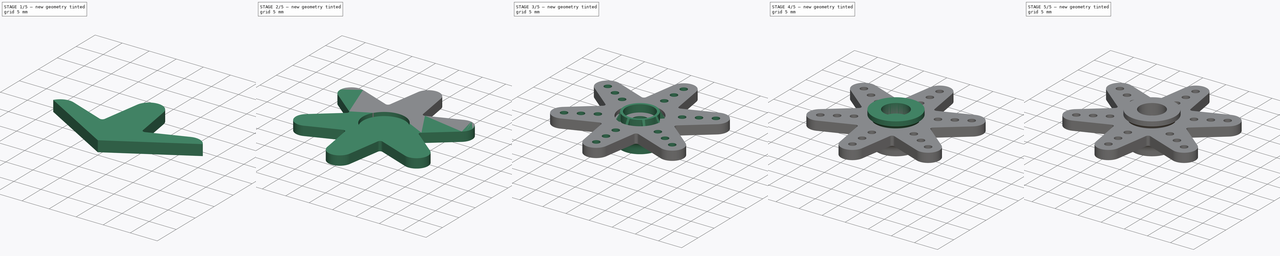
[diagram: build sequence overview — one tinted view per stage of 5, left to right]
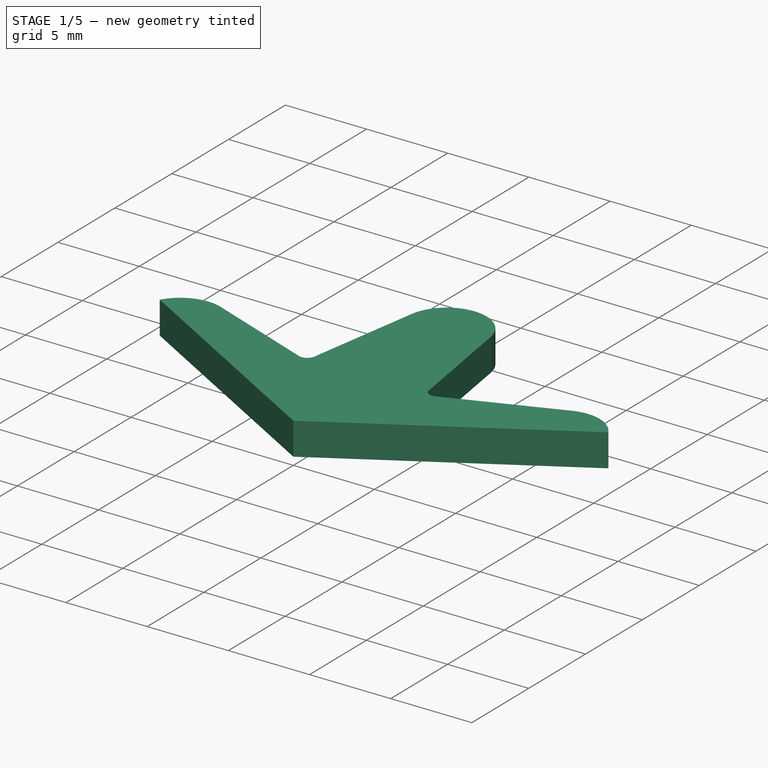
[diagram: stage 1 of 5 — iso view after this stage's code; geometry added in this stage tinted green]
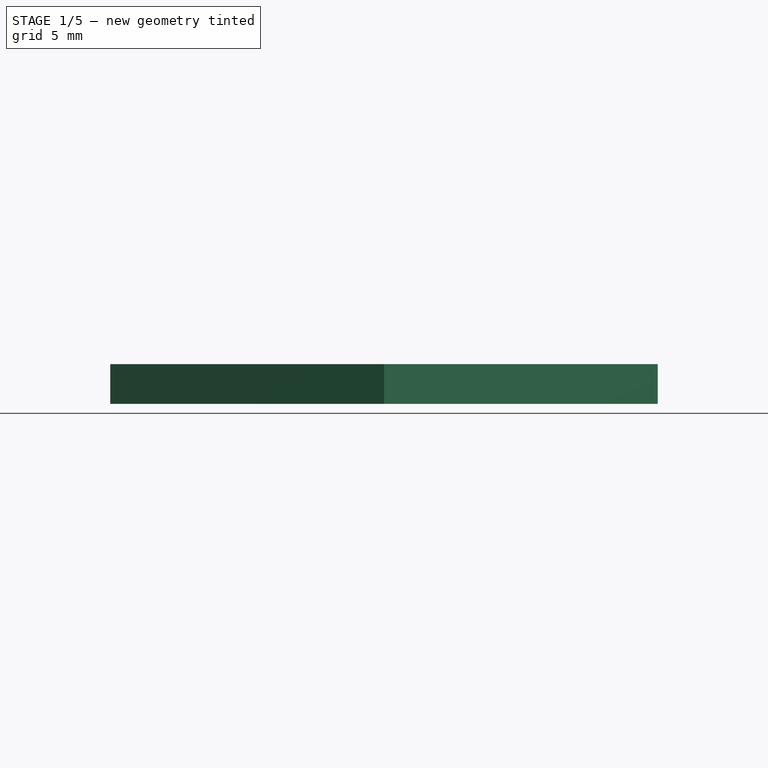
[diagram: stage 1 of 5 — front view after this stage's code; geometry added in this stage tinted green]
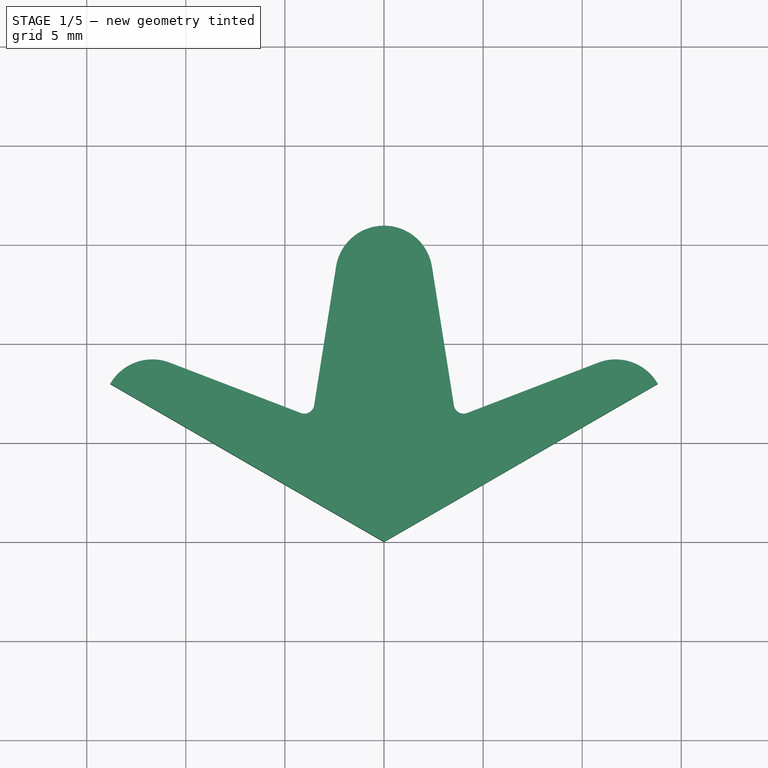
[diagram: stage 1 of 5 — top view after this stage's code; geometry added in this stage tinted green]
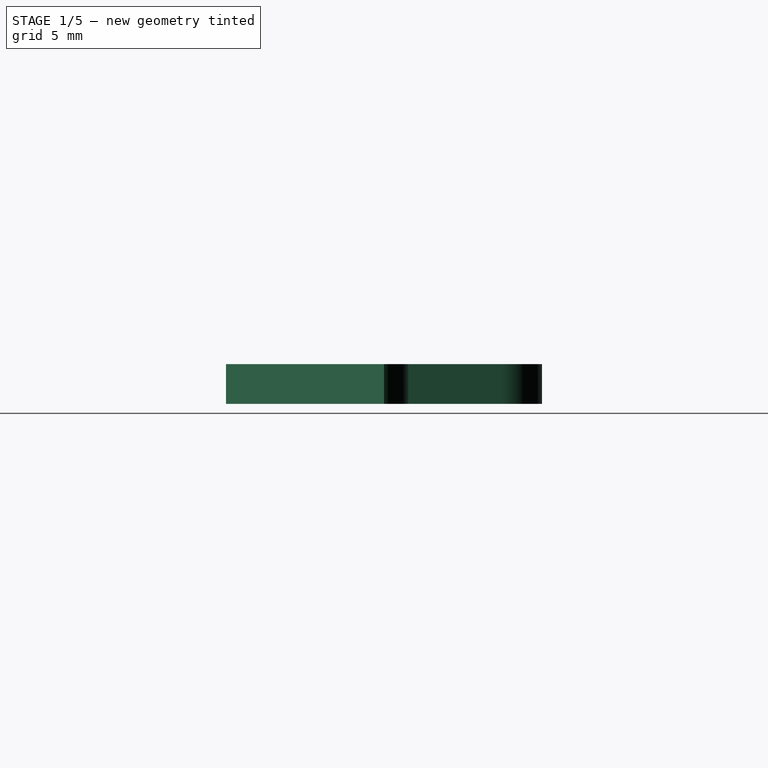
[diagram: stage 1 of 5 — right view after this stage's code; geometry added in this stage tinted green]
FCSTD DOCUMENT  (FreeCAD 0.14R3702 (Git))
Label: Futaba3003-6-arms-horn
License: CC-BY 3.0
LicenseURL: http://creativecommons.org/licenses/by/3.0/
objects: Sketcher::SketchObject×10, PartDesign::Pocket×6, Part::Feature×4, Part::MultiFuse×3, PartDesign::Pad×2, PartDesign::Revolution×2, PartDesign::PolarPattern×2, App::DocumentObjectGroup×2, Part::Mirroring×1
note: 40 computed .brp shape members not serialized (recipe doc carries the construction recipe); baked Part::Feature solids carry a one-line shape summary decoded from their .brp

FEATURE [Sketcher::SketchObject] Sketch  label="6-arms-master-sketch"
  sketch-geometry (8):
    g0: LineSegment StartX=0 StartY=0 StartZ=0 EndX=-13.8131 EndY=7.975 EndZ=0
    g1: LineSegment StartX=0 StartY=0 StartZ=0 EndX=0 EndY=15.95 EndZ=0
    g2: ArcOfCircle CenterX=0 CenterY=13.5 CenterZ=0 NormalX=0 NormalY=0 NormalZ=1 Radius=2.45 StartAngle=1.5708 EndAngle=2.98482
    g3: ArcOfCircle CenterX=-11.6913 CenterY=6.75 CenterZ=0 NormalX=0 NormalY=0 NormalZ=1 Radius=2.45 StartAngle=1.20397 EndAngle=2.61799
    g4: LineSegment [constr] StartX=-3.77 StartY=6.52983 StartZ=0 EndX=0 EndY=0 EndZ=0
    g5: LineSegment StartX=-2.41995 StartY=13.8825 StartZ=0 EndX=-3.52613 EndY=6.88478 EndZ=0
    g6: LineSegment StartX=-10.8126 StartY=9.037 StartZ=0 EndX=-4.19932 EndY=6.49611 EndZ=0
    g7: ArcOfCircle CenterX=-4.02 CenterY=6.96284 CenterZ=0 NormalX=0 NormalY=0 NormalZ=1 Radius=0.5 StartAngle=4.34557 EndAngle=6.12641
  constraints (24):
    c: Vertical(g1)
    c: Coincident(g1,g0)
    c: Coincident(g0,g-1)
    c: Angle(g1,g0) = 1.0472
    c: Equal(g0,g1)
    c: DistanceY(g1) = 15.95
    c: PointOnObject(g2,g1)
    c: Coincident(g2,g1)
    c: PointOnObject(g3,g0)
    c: Coincident(g3,g0)
    c: Coincident(g4,g-1)
    c: Angle(g1,g4) = 0.523599
    c: Distance(g4) = 7.54
    c: Equal(g3,g2)
    c: Coincident(g5,g2)
    c: Coincident(g6,g3)
    c: Tangent(g5,g7)
    c: Tangent(g6,g7)
    c: PointOnObject(g7,g4)
    c: PointOnObject(g4,g7)
    c: Radius(g7) = 0.5
    c: Tangent(g3,g6)
    c: Tangent(g2,g5)
    c: Radius(g2) = 2.45
FEATURE [PartDesign::Pad] Pad  label="6-arms-master"
  Length = 2
  Length2 = 100
  Sketch = -> Sketch
  Type = 0
FEATURE [Part::Mirroring] Part__Mirroring  label="6-arms-master (Mirror #1)"
  Base = (0,0,0)
  Normal = (1,0,0)
  Source = -> Pad
FEATURE [Part::MultiFuse] Fusion  label="6-arm-one-third"
  Shapes = -> [Part__Mirroring,Pad]
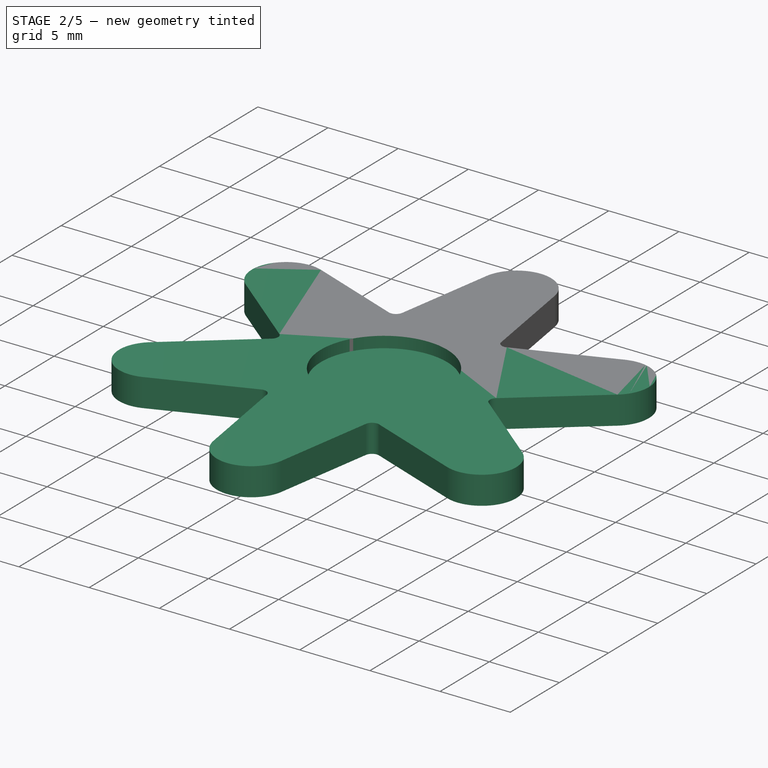
[diagram: stage 2 of 5 — iso view after this stage's code; geometry added in this stage tinted green]
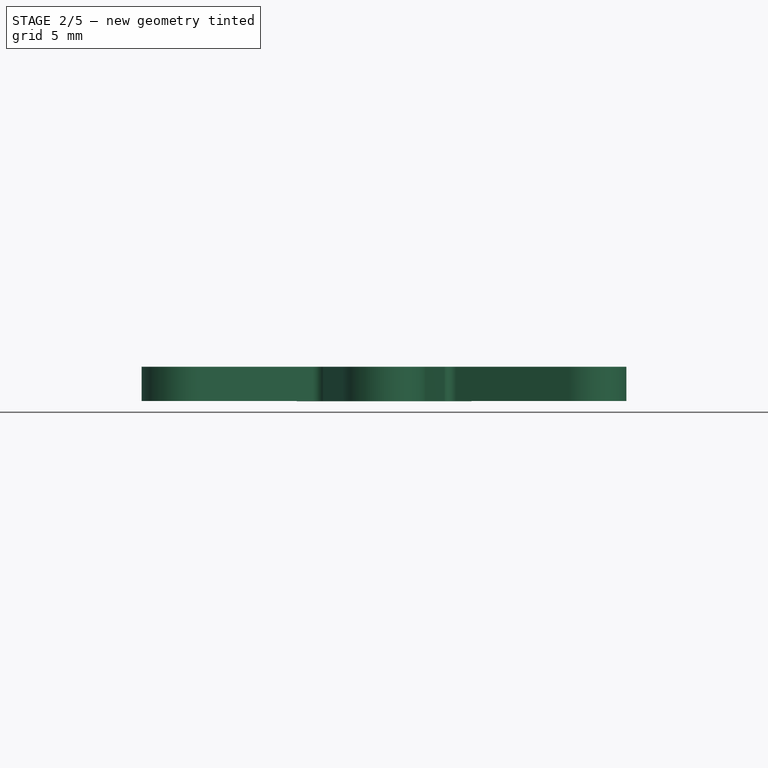
[diagram: stage 2 of 5 — front view after this stage's code; geometry added in this stage tinted green]
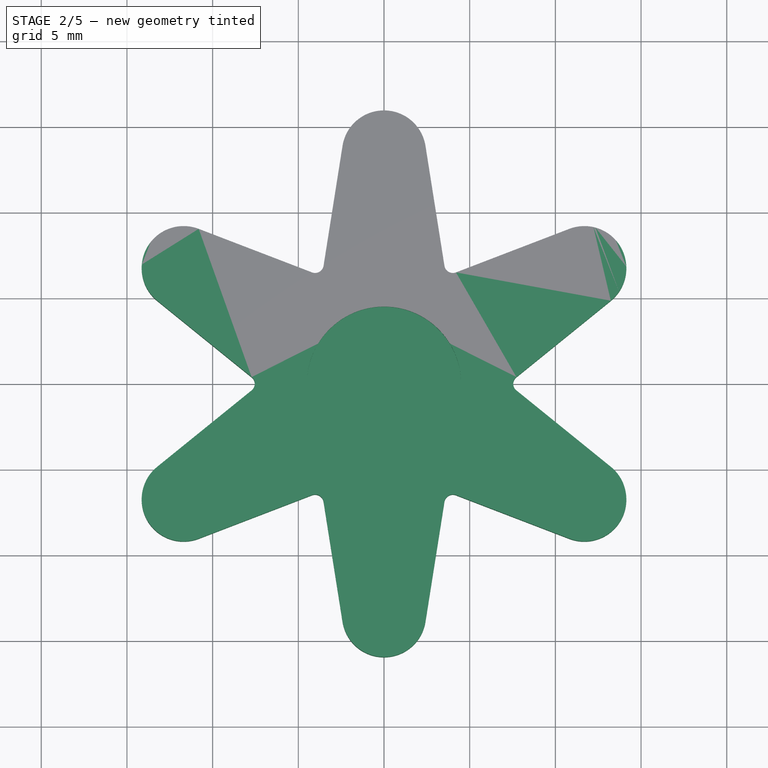
[diagram: stage 2 of 5 — top view after this stage's code; geometry added in this stage tinted green]
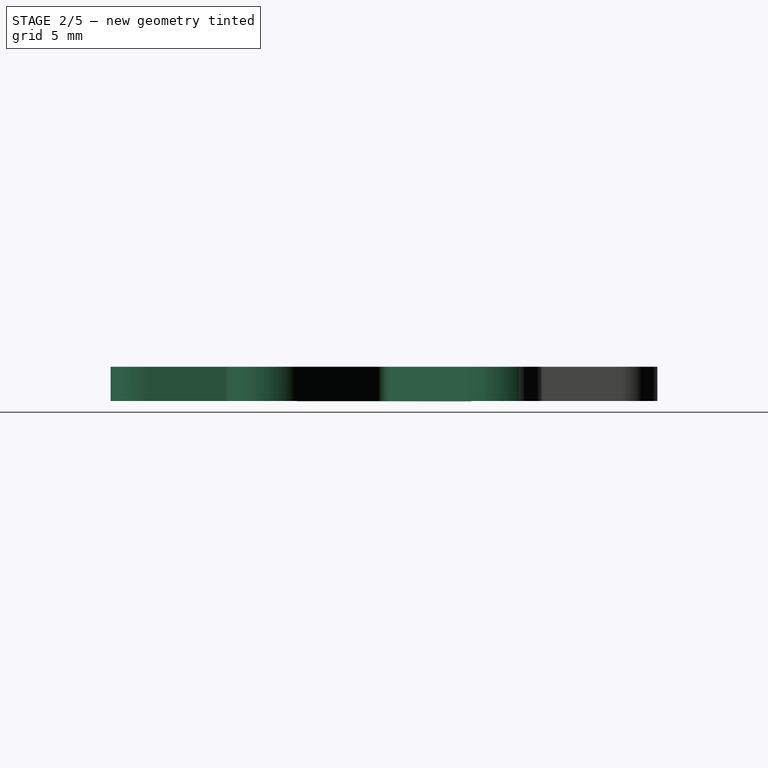
[diagram: stage 2 of 5 — right view after this stage's code; geometry added in this stage tinted green]
FEATURE [Part::Feature] Fusion001  label="6-arm-two-third"
  Placement = pos=(0,0,0) rot=(0,0,1;2.0944rad)
  shape: bbox 14.14 x 23.93 x 2 mm, 13 faces (baked)
FEATURE [Part::Feature] Fusion001001  label="6-arm-three-third"
  Placement = pos=(0,0,0) rot=(0,0,1;4.18879rad)
  shape: bbox 14.14 x 23.93 x 2 mm, 13 faces (baked)
FEATURE [Part::MultiFuse] Fusion001002  label="6-arm-horn-raw-body"
  Shapes = -> [Fusion,Fusion001,Fusion001001]
FEATURE [Sketcher::SketchObject] Sketch001  label="top-circle-1-sketch"
  Placement = pos=(0,0,2) rot=(0,0,1;0rad)
  Support = -> Fusion001002 [Face27]
  sketch-geometry (1):
    g0: Circle CenterX=0 CenterY=0 CenterZ=0 NormalX=0 NormalY=0 NormalZ=1 Radius=4.5
  constraints (2):
    c: Coincident(g0,g-1)
    c: Radius(g0) = 4.5
FEATURE [PartDesign::Pocket] Pocket  label="top-circle-1"
  Length = 0.8
  Sketch = -> Sketch001
  Type = 0
FEATURE [Sketcher::SketchObject] Sketch002  label="bottom-circle-sketch"
  Placement = pos=(0,0,0) rot=(1,0,0;3.14159rad)
  Support = -> Pocket [Face4]
  sketch-geometry (1):
    g0: Circle CenterX=0 CenterY=0 CenterZ=0 NormalX=0 NormalY=0 NormalZ=1 Radius=5.1
  constraints (2):
    c: Coincident(g0,g-1)
    c: Radius(g0) = 5.1
FEATURE [PartDesign::Pad] Pad001  label="bottom-circle-1"
  Length = 0.01
  Length2 = 100
  Sketch = -> Sketch002
  Type = 0
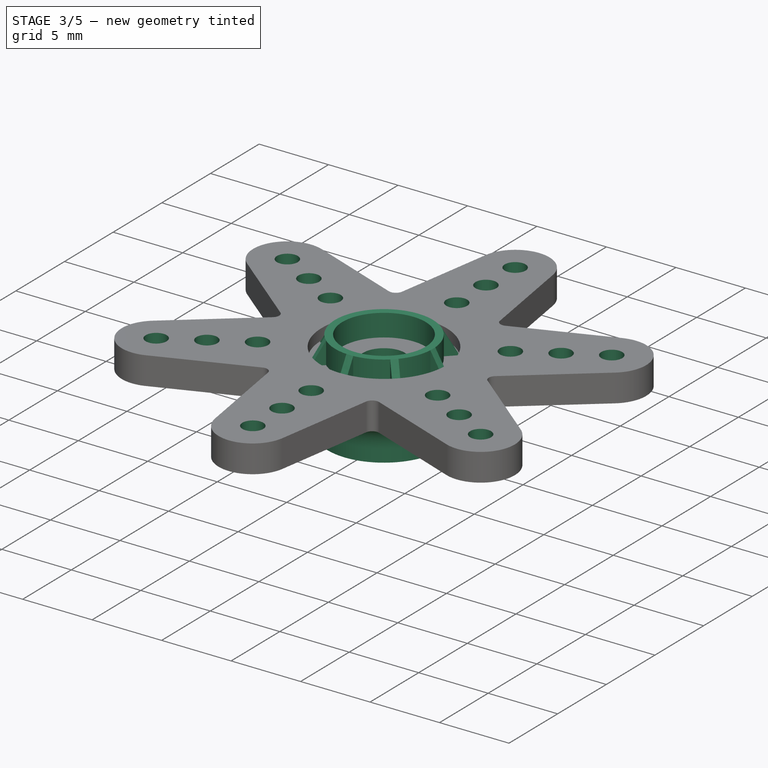
[diagram: stage 3 of 5 — iso view after this stage's code; geometry added in this stage tinted green]
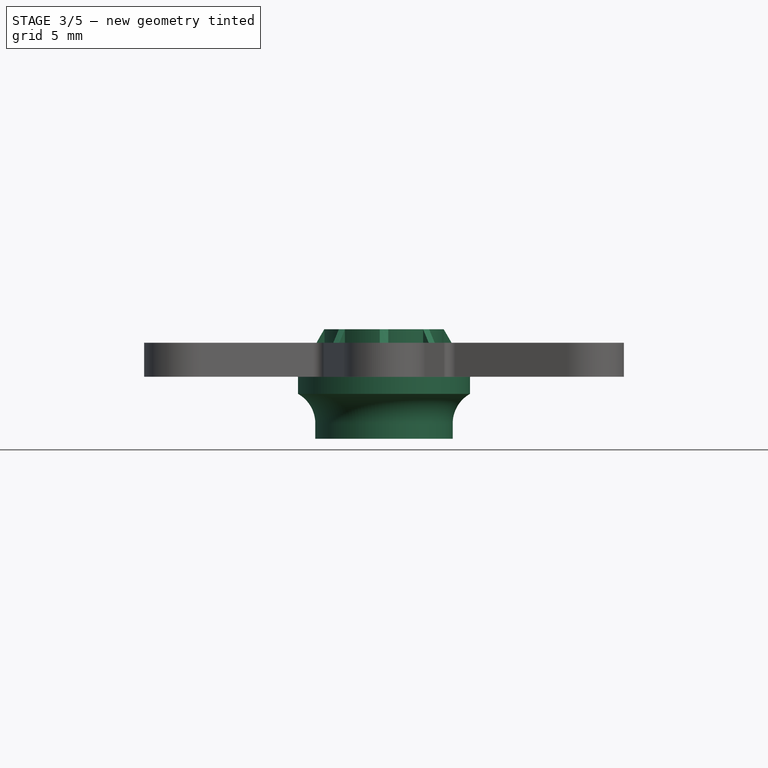
[diagram: stage 3 of 5 — front view after this stage's code; geometry added in this stage tinted green]
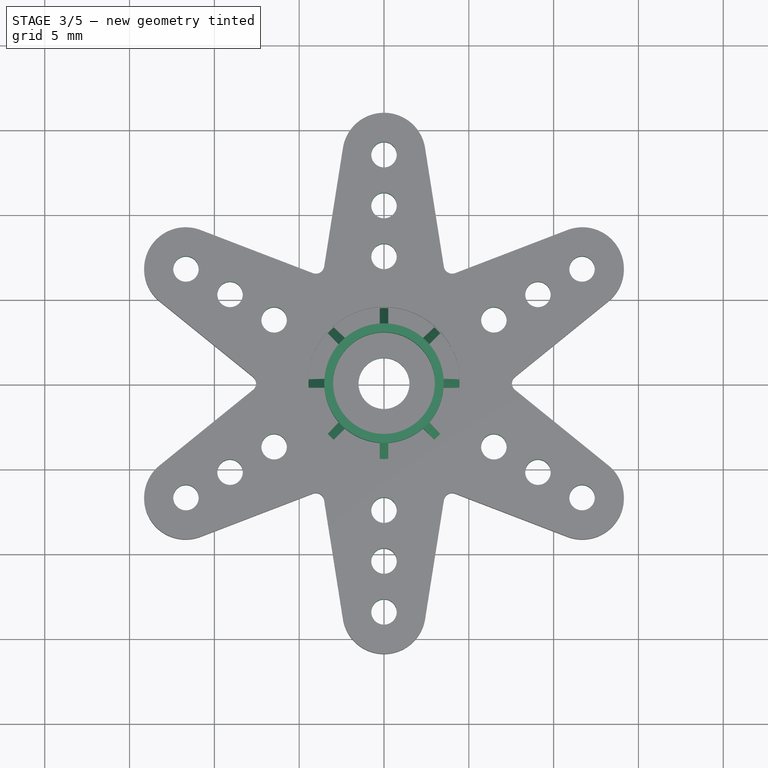
[diagram: stage 3 of 5 — top view after this stage's code; geometry added in this stage tinted green]
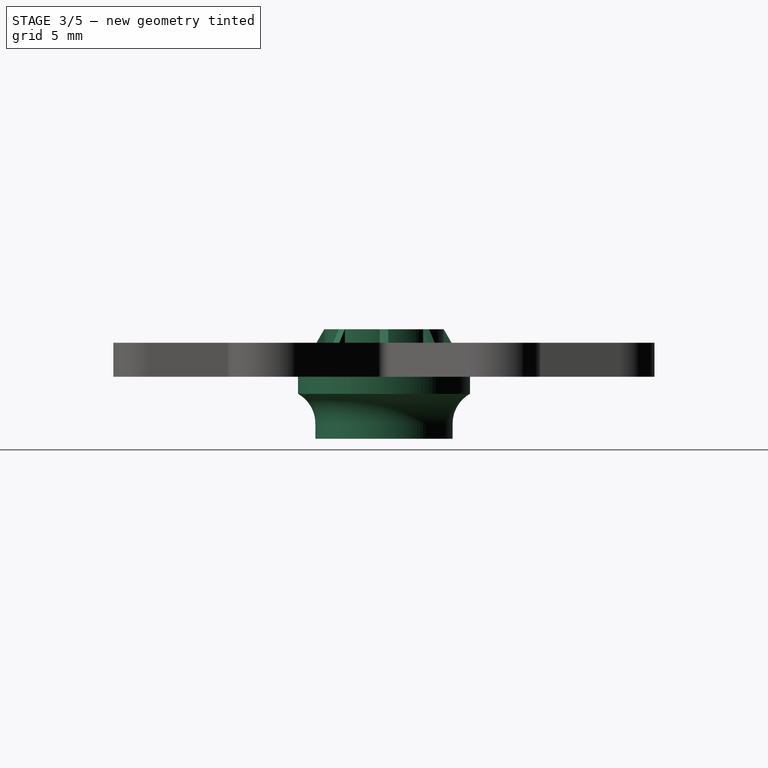
[diagram: stage 3 of 5 — right view after this stage's code; geometry added in this stage tinted green]
FEATURE [App::DocumentObjectGroup] Group001  label="bottom-part-group"
  Group = -> [Revolution001,Pocket002002]
FEATURE [Part::Feature] Pocket002002001  label="bottom-part"
  Placement = pos=(0,0,-3.66) rot=(1,0,0;1.5708rad)
  shape: bbox 13.1 x 13.1 x 4.163 mm, 6 faces (baked)
FEATURE [Part::MultiFuse] Fusion001003  label="6-arms-horn-2"
  Shapes = -> [Pad001,Pocket002001,Pocket002002001]
FEATURE [Sketcher::SketchObject] Sketch008  label="bolt-drill-sketch"
  Placement = pos=(0,0,1.2) rot=(0,0,1;0rad)
  Support = -> Fusion001003 [Face74]
  sketch-geometry (1):
    g0: Circle CenterX=0 CenterY=0 CenterZ=0 NormalX=0 NormalY=0 NormalZ=1 Radius=1.5
  constraints (2):
    c: Coincident(g0,g-1)
    c: Radius(g0) = 1.5
FEATURE [PartDesign::Pocket] Pocket002002002  label="bolt-drill"
  Length = 5
  Sketch = -> Sketch008
  Type = 1
FEATURE [Sketcher::SketchObject] Sketch009  label="arm-drills-master-sketch"
  ExternalGeometry = -> [Pocket002002002]
  Placement = pos=(0,0,2) rot=(0,0,1;0rad)
  Support = -> Pocket002002002 [Face57]
  sketch-geometry (7):
    g0: Circle CenterX=0 CenterY=13.48 CenterZ=0 NormalX=0 NormalY=0 NormalZ=1 Radius=0.75
    g1: Circle CenterX=0 CenterY=10.48 CenterZ=0 NormalX=0 NormalY=0 NormalZ=1 Radius=0.75
    g2: Circle CenterX=0 CenterY=7.48 CenterZ=0 NormalX=0 NormalY=0 NormalZ=1 Radius=0.75
    g3: LineSegment [constr] StartX=0 StartY=15.95 StartZ=0 EndX=0 EndY=14.23 EndZ=0
    g4: GeomPoint [constr] X=0 Y=12.73 Z=0
    g5: GeomPoint [constr] X=0 Y=8.23 Z=0
    g6: GeomPoint [constr] X=0 Y=6.73 Z=0
  constraints (18):
    c: PointOnObject(g0,g-2)
    c: PointOnObject(g1,g-2)
    c: PointOnObject(g2,g-2)
    c: Equal(g0,g1)
    c: Equal(g1,g2)
    c: Vertical(g3)
    c: Coincident(g3,g-3)
    c: PointOnObject(g3,g0)
    c: DistanceY(g3) = -1.72
    c: Radius(g0) = 0.75
    c: PointOnObject(g4,g0)
    c: PointOnObject(g4,g-2)
    c: PointOnObject(g5,g2)
    c: PointOnObject(g5,g-2)
    c: PointOnObject(g6,g2)
    c: PointOnObject(g6,g-2)
    c: DistanceY(g3,g6) = -7.5
    c: Symmetric(g0,g2,g1)
FEATURE [PartDesign::Pocket] Pocket002002003  label="arm-drills-master"
  Length = 5
  Sketch = -> Sketch009
  Type = 1
FEATURE [PartDesign::PolarPattern] PolarPattern001  label="6-arms-horn-final"
  Angle = 360
  Axis = -> Sketch009 [N_Axis]
  Occurrences = 6
  Originals = -> [Pocket002002003]
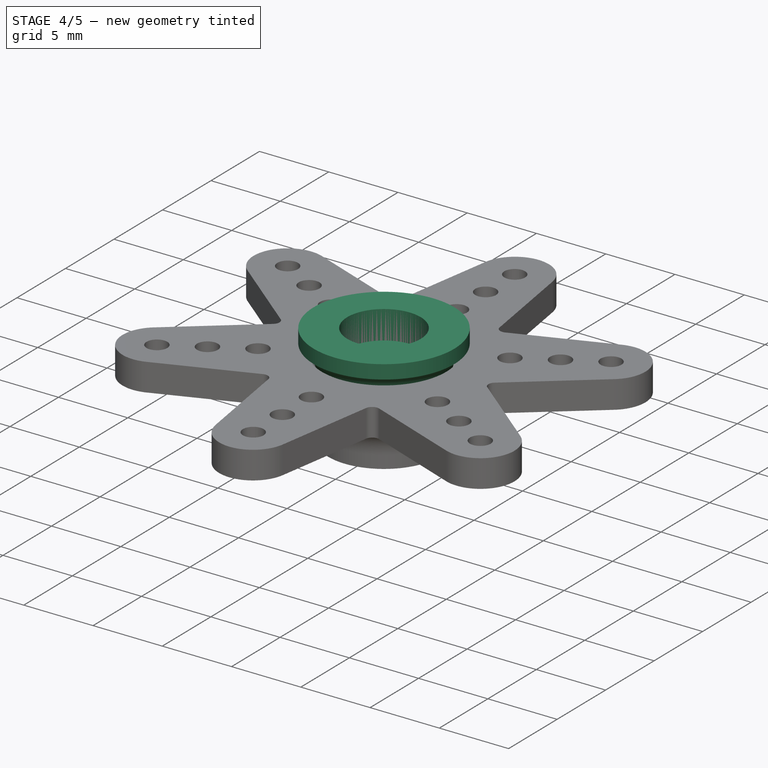
[diagram: stage 4 of 5 — iso view after this stage's code; geometry added in this stage tinted green]
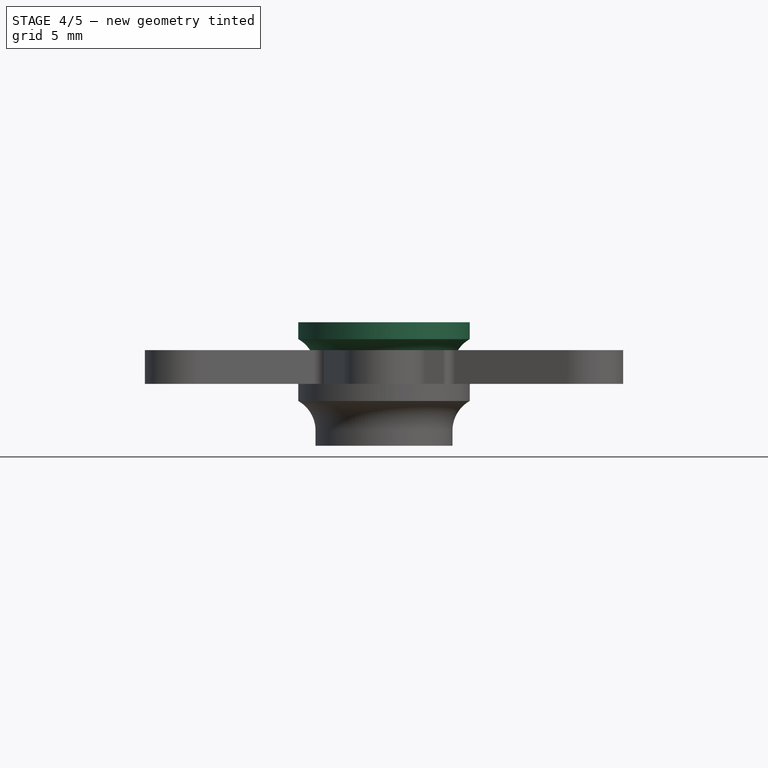
[diagram: stage 4 of 5 — front view after this stage's code; geometry added in this stage tinted green]
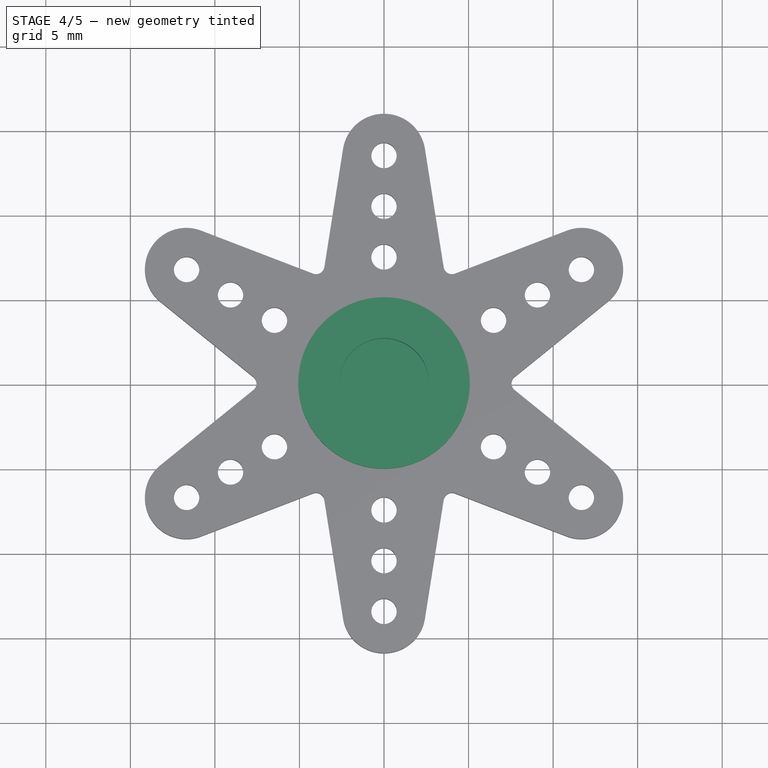
[diagram: stage 4 of 5 — top view after this stage's code; geometry added in this stage tinted green]
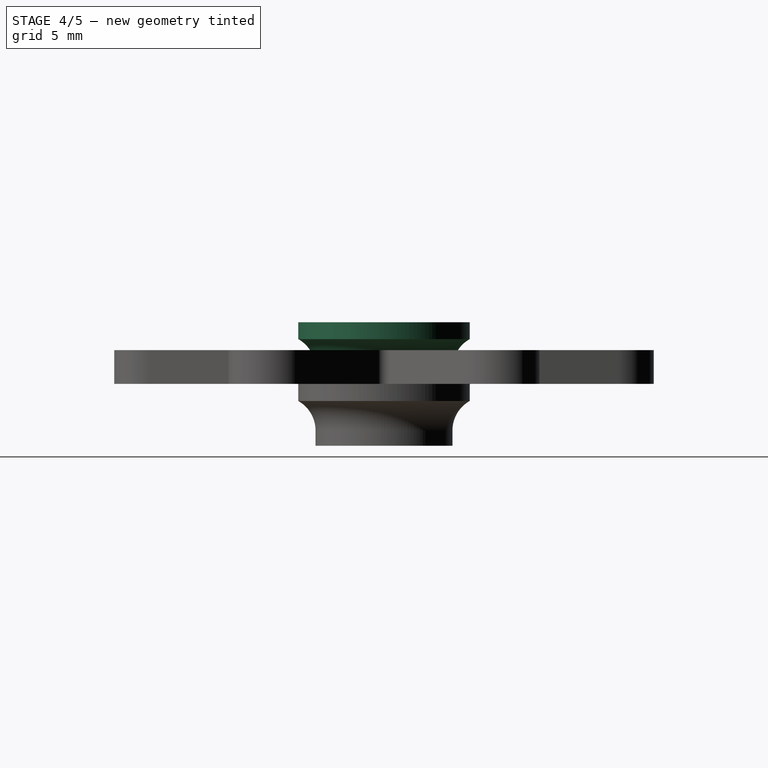
[diagram: stage 4 of 5 — right view after this stage's code; geometry added in this stage tinted green]
FEATURE [Sketcher::SketchObject] Sketch003  label="top-part-1-sketch"
  Placement = pos=(0,0,0) rot=(1,0,0;1.5708rad)
  sketch-geometry (4):
    g0: LineSegment StartX=4.45 StartY=0 StartZ=0 EndX=0 EndY=0 EndZ=0
    g1: LineSegment StartX=0 StartY=0 StartZ=0 EndX=0 EndY=1.6 EndZ=0
    g2: LineSegment StartX=0 StartY=1.6 StartZ=0 EndX=3.52 EndY=1.6 EndZ=0
    g3: LineSegment StartX=3.52 StartY=1.6 StartZ=0 EndX=4.45 EndY=0 EndZ=0
  constraints (11):
    c: Horizontal(g0)
    c: Vertical(g1)
    c: Coincident(g0,g1)
    c: Horizontal(g2)
    c: Coincident(g1,g2)
    c: Coincident(g3,g0)
    c: Coincident(g3,g2)
    c: Coincident(g0,g-1)
    c: DistanceX(g0) = -4.45
    c: DistanceX(g2) = 3.52
    c: DistanceY(g1) = 1.6
FEATURE [PartDesign::Revolution] Revolution  label="top-part-1"
  Angle = 360
  Axis = (0,0,1)
  Base = (0,0,0)
  Placement = pos=(0,0,0) rot=(1,0,0;1.5708rad)
  ReferenceAxis = -> Sketch003 [V_Axis]
  Reversed = true
  Sketch = -> Sketch003
FEATURE [App::DocumentObjectGroup] Group  label="top-part-group"
  Group = -> [Revolution,Pocket001,PolarPattern,Pocket002]
FEATURE [Part::Feature] Pocket002001  label="top-part"
  Placement = pos=(0,0,1.2) rot=(1,0,0;1.5708rad)
  shape: bbox 8.9 x 8.9 x 1.6 mm, 36 faces (baked)
FEATURE [Sketcher::SketchObject] Sketch006  label="bottom-part-1-sketch"
  Placement = pos=(0,0,0) rot=(1,0,0;1.5708rad)
  sketch-geometry (6):
    g0: LineSegment StartX=0 StartY=0 StartZ=0 EndX=4.05 EndY=0 EndZ=0
    g1: LineSegment StartX=4.05 StartY=0 StartZ=0 EndX=4.05 EndY=0.906555 EndZ=0
    g2: LineSegment StartX=0 StartY=0 StartZ=0 EndX=0 EndY=3.65 EndZ=0
    g3: LineSegment StartX=0 StartY=3.65 StartZ=0 EndX=5.07 EndY=3.65 EndZ=0
    g4: LineSegment StartX=5.07 StartY=3.65 StartZ=0 EndX=5.07 EndY=2.65 EndZ=0
    g5: ArcOfCircle CenterX=6.05 CenterY=0.906555 CenterZ=0 NormalX=0 NormalY=0 NormalZ=1 Radius=2 StartAngle=2.08289 EndAngle=3.14159
  constraints (18):
    c: Coincident(g-1,g0)
    c: Horizontal(g0)
    c: Coincident(g0,g1)
    c: Vertical(g1)
    c: Coincident(g-1,g2)
    c: Vertical(g2)
    c: Coincident(g2,g3)
    c: Horizontal(g3)
    c: Coincident(g3,g4)
    c: DistanceY(g2) = 3.65
    c: Vertical(g4)
    c: DistanceY(g4) = -1
    c: Coincident(g5,g1)
    c: Coincident(g5,g4)
    c: Tangent(g5,g1)
    c: Radius(g5) = 2
    c: DistanceX(g3) = 5.07
    c: DistanceX(g0) = 4.05
FEATURE [PartDesign::Revolution] Revolution001  label="bottom-part-1"
  Angle = 360
  Axis = (0,0,1)
  Base = (0,0,0)
  Placement = pos=(0,0,0) rot=(1,0,0;1.5708rad)
  ReferenceAxis = -> Sketch006 [V_Axis]
  Reversed = true
  Sketch = -> Sketch006
FEATURE [Sketcher::SketchObject] Sketch007  label="bottom-part-2-sketch"
  Placement = pos=(0,0,0) rot=(1,0,0;3.14159rad)
  Support = -> Revolution001 [Face1]
  sketch-geometry (1):
    g0: Circle CenterX=0 CenterY=0 CenterZ=0 NormalX=0 NormalY=0 NormalZ=1 Radius=2.65
  constraints (2):
    c: Coincident(g0,g-1)
    c: Radius(g0) = 2.65
FEATURE [PartDesign::Pocket] Pocket002002  label="bottom-part-2"
  Length = 5
  Placement = pos=(0,0,0) rot=(1,0,0;1.5708rad)
  Sketch = -> Sketch007
  Type = 1
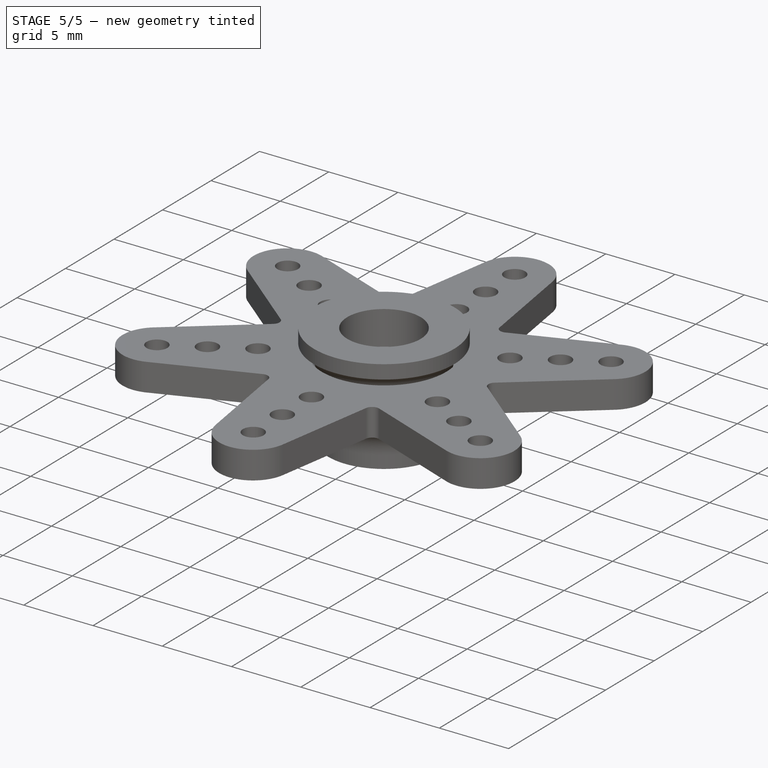
[diagram: stage 5 of 5 — iso view after this stage's code; geometry added in this stage tinted green]
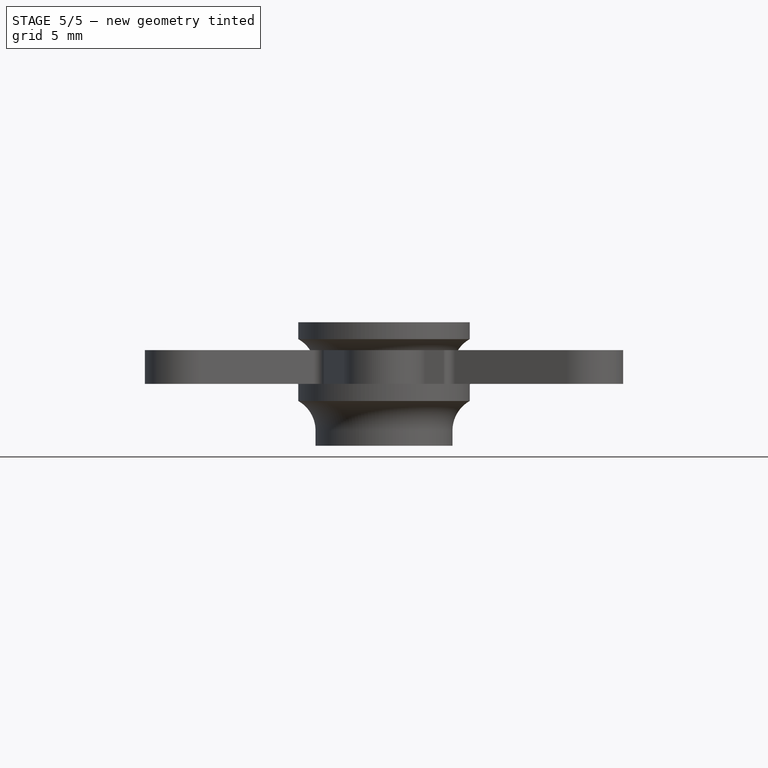
[diagram: stage 5 of 5 — front view after this stage's code; geometry added in this stage tinted green]
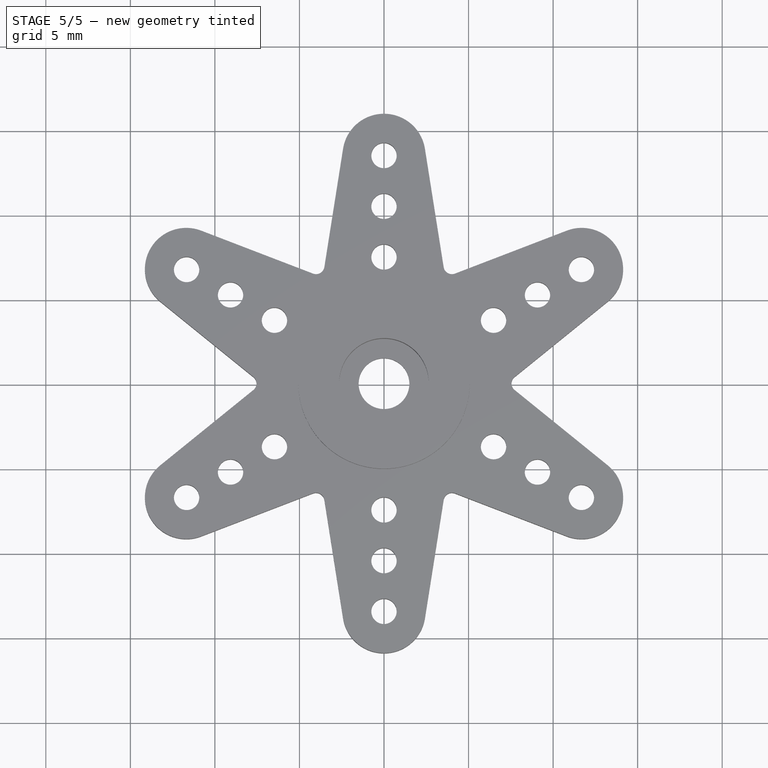
[diagram: stage 5 of 5 — top view after this stage's code; geometry added in this stage tinted green]
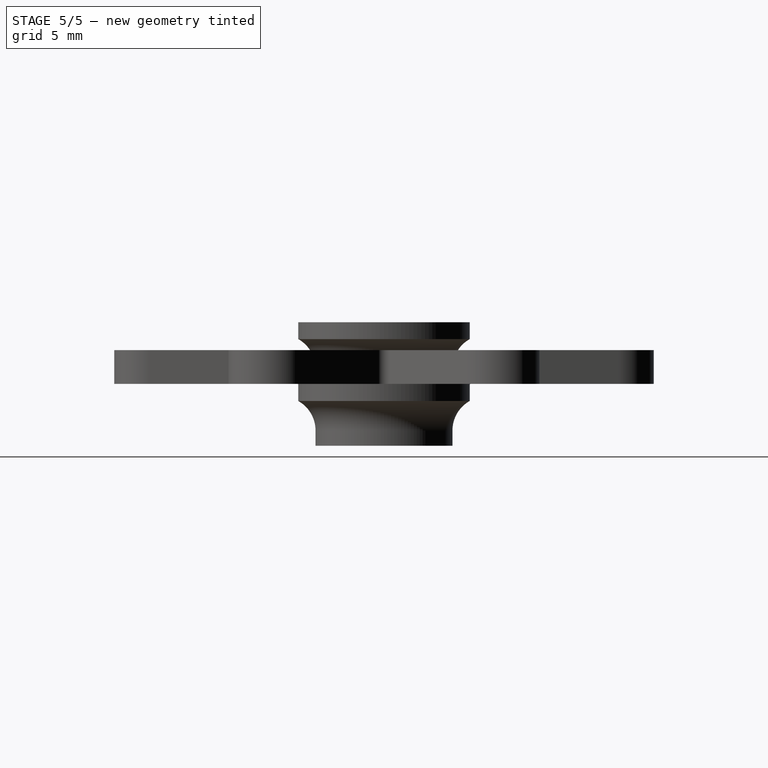
[diagram: stage 5 of 5 — right view after this stage's code; geometry added in this stage tinted green]
FEATURE [Sketcher::SketchObject] Sketch004  label="top-part-2-sketch"
  ExternalGeometry = -> [Revolution]
  Placement = pos=(0,0,1.6) rot=(0,0,1;3.14159rad)
  Support = -> Revolution [Face2]
  sketch-geometry (5):
    g0: LineSegment StartX=0.25 StartY=4.81111 StartZ=0 EndX=0.25 EndY=3.51111 EndZ=0
    g1: LineSegment [constr] StartX=0 StartY=0 StartZ=0 EndX=2.48902 EndY=2.48902 EndZ=0
    g2: ArcOfCircle CenterX=0 CenterY=0 CenterZ=0 NormalX=0 NormalY=0 NormalZ=1 Radius=3.52 StartAngle=0.856481 EndAngle=1.49971
    g3: LineSegment StartX=2.30595 StartY=2.65951 StartZ=0 EndX=3.22519 EndY=3.57875 EndZ=0
    g4: ArcOfCircle CenterX=0 CenterY=0 CenterZ=0 NormalX=0 NormalY=0 NormalZ=1 Radius=4.8176 StartAngle=0.837315 EndAngle=1.51888
  constraints (15):
    c: Vertical(g0)
    c: Coincident(g1,g-1)
    c: Angle(g-1,g1) = 0.785398
    c: PointOnObject(g0,g-3)
    c: DistanceX(g-1,g0) = 0.25
    c: Coincident(g2,g-1)
    c: Parallel(g3,g1)
    c: Coincident(g4,g-1)
    c: Coincident(g2,g0)
    c: Coincident(g3,g2)
    c: Coincident(g4,g3)
    c: Coincident(g4,g0)
    c: Equal(g3,g0)
    c: PointOnObject(g1,g-3)
    c: DistanceY(g0) = -1.3
FEATURE [PartDesign::Pocket] Pocket001  label="top-part-2"
  Length = 5
  Placement = pos=(0,0,0) rot=(1,0,0;1.5708rad)
  Sketch = -> Sketch004
  Type = 1
FEATURE [PartDesign::PolarPattern] PolarPattern
  Angle = 360
  Axis = -> Sketch004 [N_Axis]
  Occurrences = 8
  Originals = -> [Pocket001]
  Placement = pos=(0,0,0) rot=(1,0,0;1.5708rad)
FEATURE [Sketcher::SketchObject] Sketch005  label="top-part-inner-cicle-sketch"
  Placement = pos=(0,0,1.6) rot=(0,0,1;3.14159rad)
  Support = -> PolarPattern [Face35]
  sketch-geometry (1):
    g0: Circle CenterX=0 CenterY=0 CenterZ=0 NormalX=0 NormalY=0 NormalZ=1 Radius=3
  constraints (2):
    c: Coincident(g0,g-1)
    c: Radius(g0) = 3
FEATURE [PartDesign::Pocket] Pocket002  label="top-part-inner-circle"
  Length = 5
  Placement = pos=(0,0,0) rot=(1,0,0;1.5708rad)
  Sketch = -> Sketch005
  Type = 1
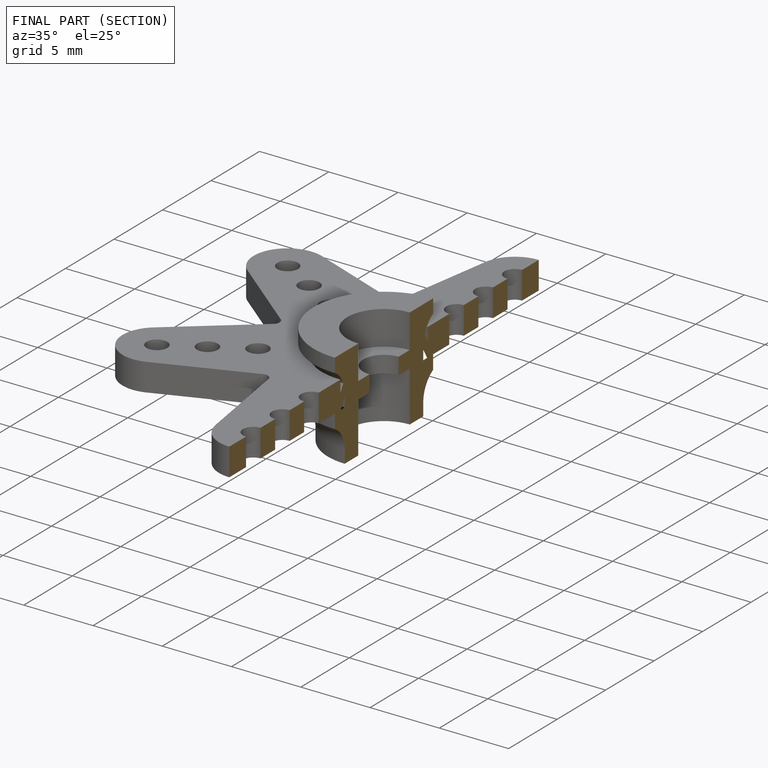
[diagram: finished part — half-section view (interior)]
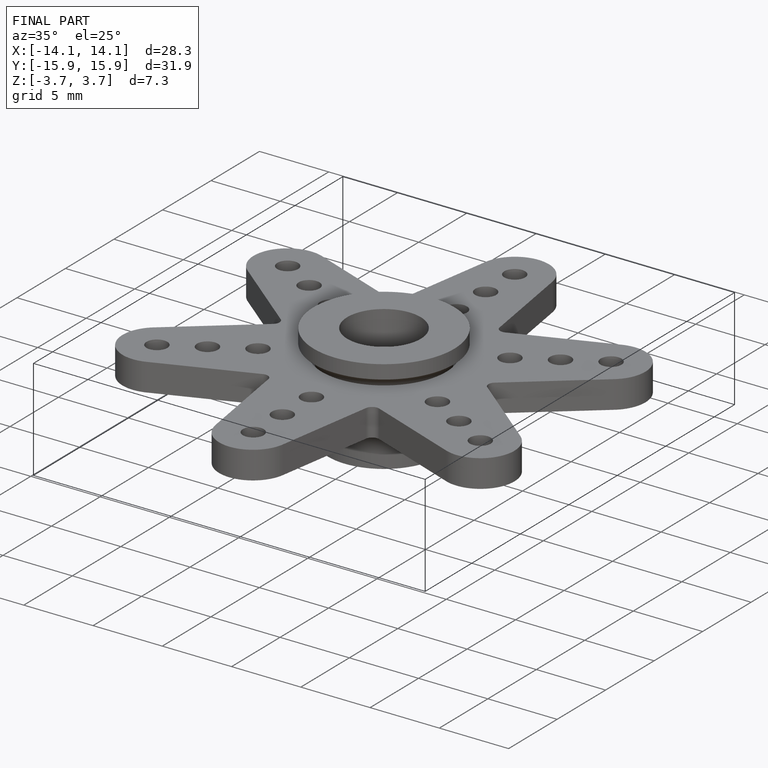
[diagram: finished part — iso view with bounding-box wireframe]
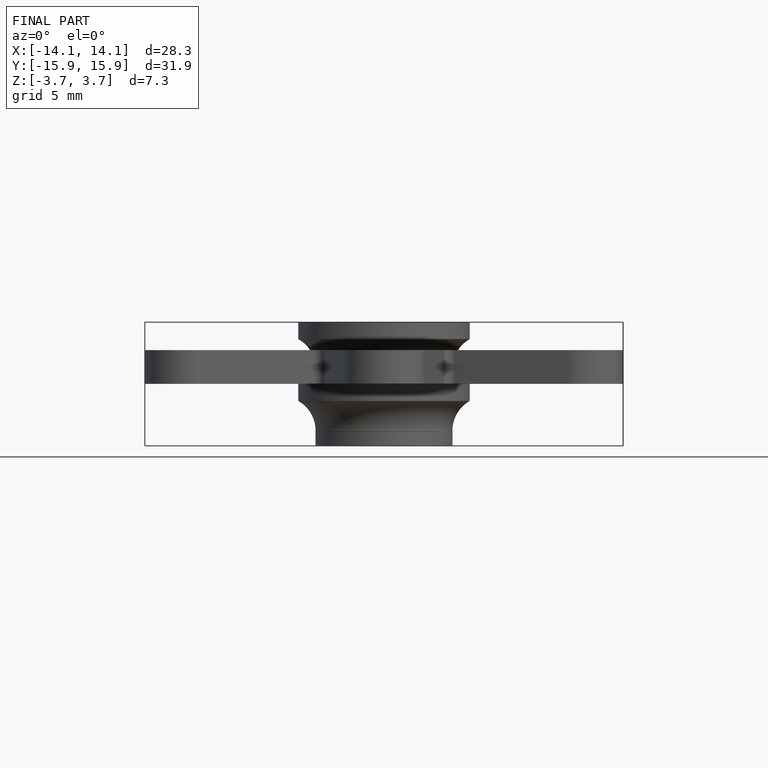
[diagram: finished part — front view with bounding-box wireframe]
